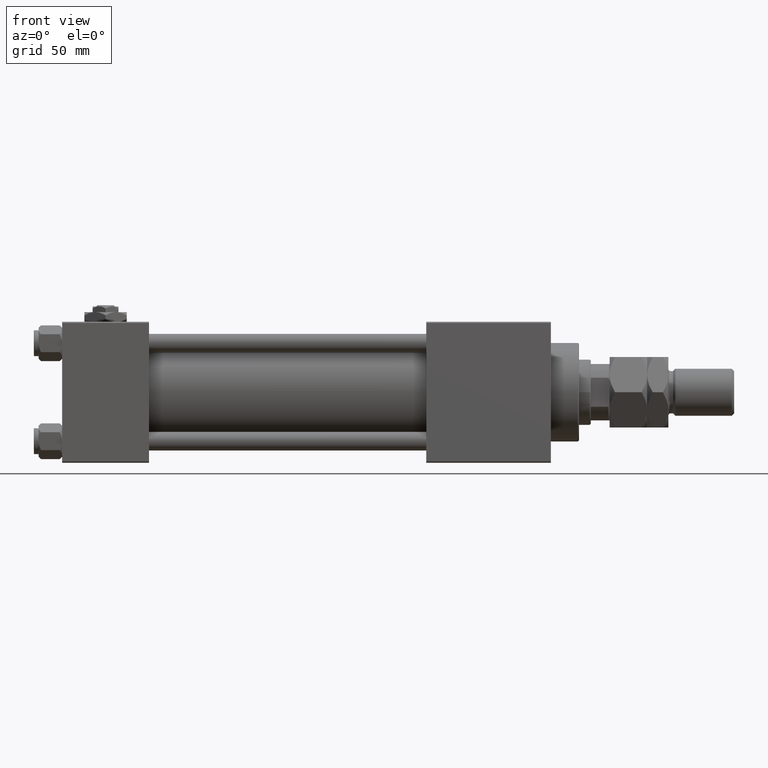
[diagram: clean part render]
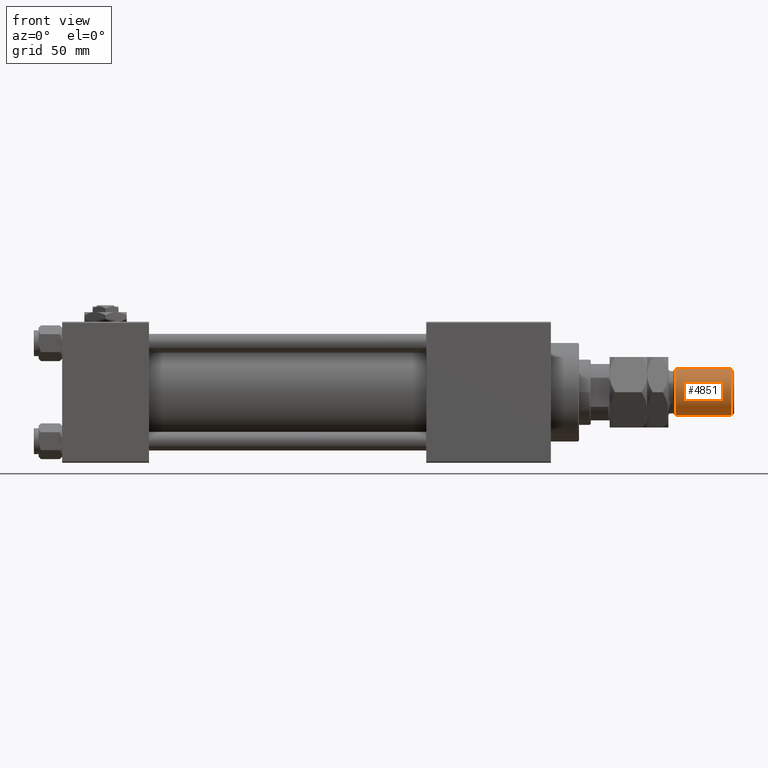
[diagram: same view with one face highlighted and labeled with its STEP entity id]
A machine part, front view. The second image highlights one B-rep face of the part: STEP entity #4851.
In plain terms, the highlighted cylindrical surface (edge-blend (fillet) strip) has radius 10 mm, axis along (-1, -0, 0).
Its self-contained STEP definition (entity closure, byte-faithful):
#1608 = EDGE_CURVE ( 'NONE', #38576, #53678, #31622, .T. ) ;
#3018 = ORIENTED_EDGE ( 'NONE', *, *, #31863, .T. ) ;
#4441 = CARTESIAN_POINT ( 'NONE',  ( 0.000000000000000000, 0.000000000000000000, 52.00000000000004974 ) ) ;
#4851 = ADVANCED_FACE ( 'NONE', ( #26180 ), #38142, .T. ) ;
#9313 = DIRECTION ( 'NONE',  ( -1.000000000000000000, 0.000000000000000000, 0.000000000000000000 ) ) ;
#10281 = AXIS2_PLACEMENT_3D ( 'NONE', #4441, #33813, #46074 ) ;
#11164 = CARTESIAN_POINT ( 'NONE',  ( 10.00000000000000000, 1.224646799147353059E-15, 52.00000000000004974 ) ) ;
#11818 = VERTEX_POINT ( 'NONE', #40844 ) ;
#12912 = VERTEX_POINT ( 'NONE', #29451 ) ;
#13834 = CARTESIAN_POINT ( 'NONE',  ( 0.000000000000000000, 0.000000000000000000, 28.00000000000002487 ) ) ;
#15588 = EDGE_CURVE ( 'NONE', #11818, #12912, #24777, .T. ) ;
#17653 = ORIENTED_EDGE ( 'NONE', *, *, #15588, .T. ) ;
#17728 = CIRCLE ( 'NONE', #36823, 10.00000000000000000 ) ;
#18021 = DIRECTION ( 'NONE',  ( -0.000000000000000000, -0.000000000000000000, -1.000000000000000000 ) ) ;
#20533 = AXIS2_PLACEMENT_3D ( 'NONE', #43072, #18021, #9313 ) ;
#21437 = DIRECTION ( 'NONE',  ( 1.000000000000000000, 0.000000000000000000, 0.000000000000000000 ) ) ;
#22139 = VECTOR ( 'NONE', #44148, 1000.000000000000000 ) ;
#24777 = LINE ( 'NONE', #32147, #49488 ) ;
#26180 = FACE_OUTER_BOUND ( 'NONE', #28757, .T. ) ;
#27540 = CARTESIAN_POINT ( 'NONE',  ( 10.00000000000000000, 1.224646799147353059E-15, 53.00000000000000711 ) ) ;
#28757 = EDGE_LOOP ( 'NONE', ( #51569, #3018, #17653, #34239 ) ) ;
#29451 = CARTESIAN_POINT ( 'NONE',  ( -10.00000000000000000, 0.000000000000000000, 28.00000000000002487 ) ) ;
#31622 = LINE ( 'NONE', #27540, #22139 ) ;
#31863 = EDGE_CURVE ( 'NONE', #38576, #11818, #33713, .T. ) ;
#32147 = CARTESIAN_POINT ( 'NONE',  ( -10.00000000000000000, 0.000000000000000000, 53.00000000000000711 ) ) ;
#33713 = CIRCLE ( 'NONE', #10281, 10.00000000000000000 ) ;
#33813 = DIRECTION ( 'NONE',  ( 0.000000000000000000, 0.000000000000000000, -1.000000000000000000 ) ) ;
#34239 = ORIENTED_EDGE ( 'NONE', *, *, #38844, .T. ) ;
#36823 = AXIS2_PLACEMENT_3D ( 'NONE', #13834, #37497, #21437 ) ;
#37497 = DIRECTION ( 'NONE',  ( -0.000000000000000000, -0.000000000000000000, 1.000000000000000000 ) ) ;
#38142 = CYLINDRICAL_SURFACE ( 'NONE', #20533, 10.00000000000000000 ) ;
#38576 = VERTEX_POINT ( 'NONE', #11164 ) ;
#38844 = EDGE_CURVE ( 'NONE', #12912, #53678, #17728, .T. ) ;
#40844 = CARTESIAN_POINT ( 'NONE',  ( -10.00000000000000000, 0.000000000000000000, 52.00000000000004974 ) ) ;
#43072 = CARTESIAN_POINT ( 'NONE',  ( 0.000000000000000000, 0.000000000000000000, 53.00000000000000711 ) ) ;
#44148 = DIRECTION ( 'NONE',  ( -0.000000000000000000, -0.000000000000000000, -1.000000000000000000 ) ) ;
#46074 = DIRECTION ( 'NONE',  ( 1.000000000000000000, 0.000000000000000000, 0.000000000000000000 ) ) ;
#49488 = VECTOR ( 'NONE', #53090, 1000.000000000000000 ) ;
#51569 = ORIENTED_EDGE ( 'NONE', *, *, #1608, .F. ) ;
#53090 = DIRECTION ( 'NONE',  ( -0.000000000000000000, -0.000000000000000000, -1.000000000000000000 ) ) ;
#53618 = CARTESIAN_POINT ( 'NONE',  ( 10.00000000000000000, 1.224646799147353059E-15, 28.00000000000002487 ) ) ;
#53678 = VERTEX_POINT ( 'NONE', #53618 ) ;